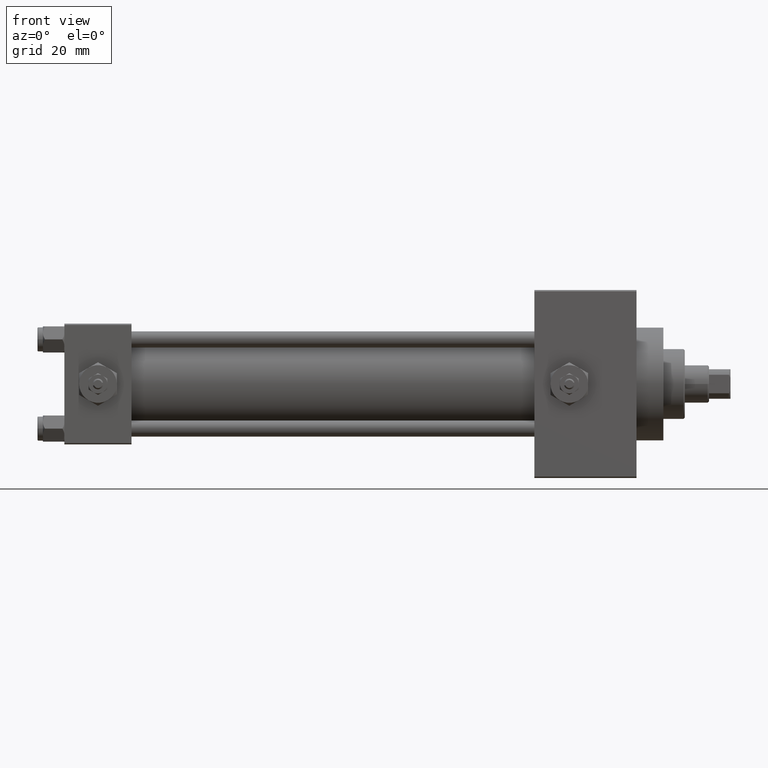
[diagram: clean part render]
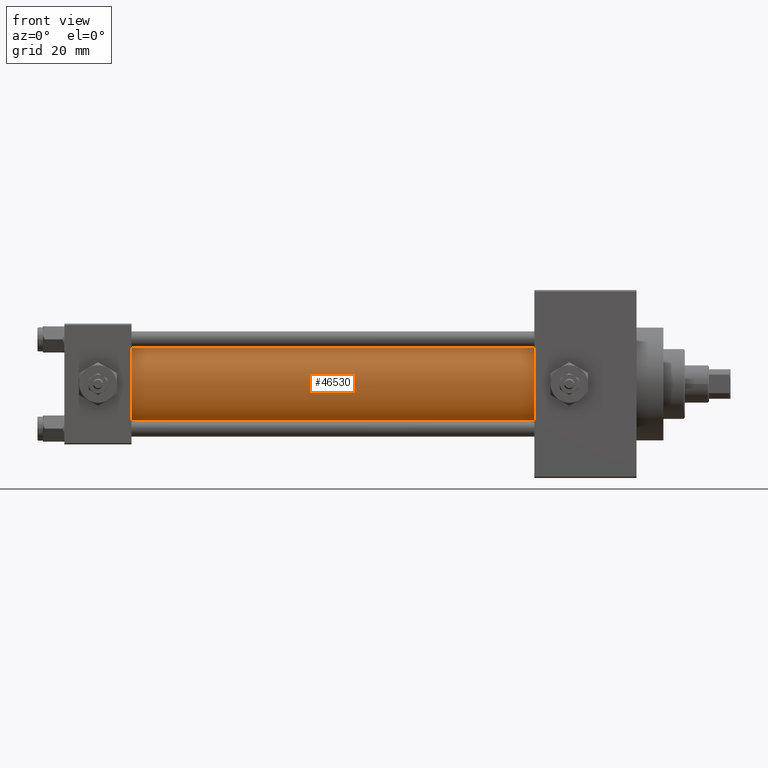
[diagram: same view with one face highlighted and labeled with its STEP entity id]
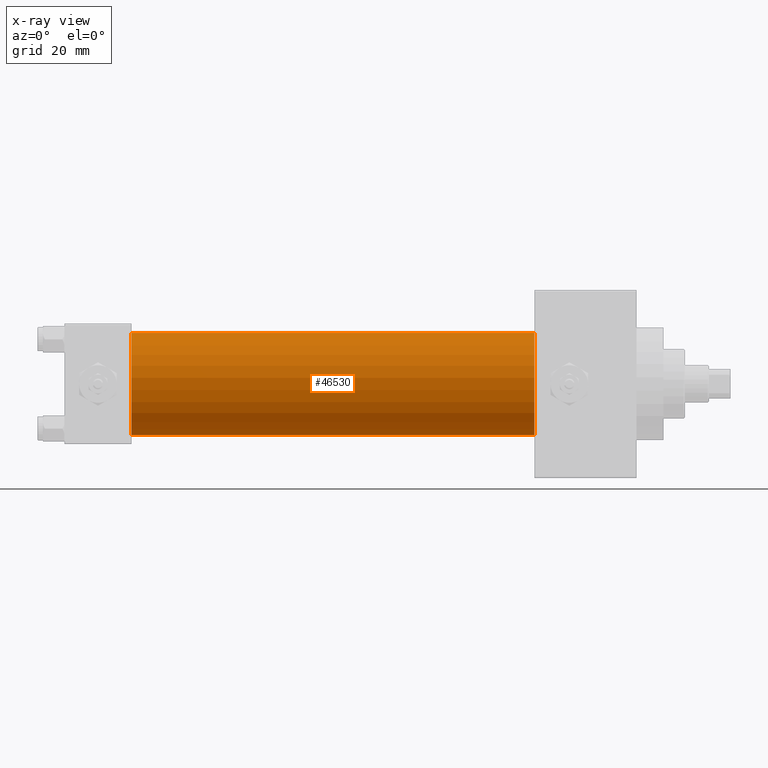
[diagram: x-ray of the same camera — body ghosted, the highlighted face saturated]
A machine part, front view. The second image highlights one B-rep face of the part: STEP entity #46530.
The next image is the same camera in x-ray: the body ghosted, the highlighted face saturated — about 0% of this face is hidden behind the body in this view.
In plain terms, the highlighted cylindrical surface (partial cylindrical patch) has radius 19 mm, axis along (-1, -0, -0).
Its self-contained STEP definition (entity closure, byte-faithful):
#3899 = EDGE_LOOP ( 'NONE', ( #4604, #28913, #47193, #43938 ) ) ;
#4604 = ORIENTED_EDGE ( 'NONE', *, *, #38724, .F. ) ;
#5856 = CIRCLE ( 'NONE', #14562, 19.00000000000000000 ) ;
#7008 = DIRECTION ( 'NONE',  ( 0.000000000000000000, 0.000000000000000000, -1.000000000000000000 ) ) ;
#7709 = CARTESIAN_POINT ( 'NONE',  ( 175.0000000000000000, -2.752562955852396712E-16, -19.00000000000000000 ) ) ;
#9627 = AXIS2_PLACEMENT_3D ( 'NONE', #27647, #42787, #35349 ) ;
#9735 = VERTEX_POINT ( 'NONE', #29379 ) ;
#12528 = DIRECTION ( 'NONE',  ( -1.000000000000000000, -0.000000000000000000, -0.000000000000000000 ) ) ;
#14562 = AXIS2_PLACEMENT_3D ( 'NONE', #41006, #37276, #7008 ) ;
#14953 = EDGE_CURVE ( 'NONE', #26841, #22682, #19977, .T. ) ;
#15272 = CARTESIAN_POINT ( 'NONE',  ( 24.99999999999999289, -2.602085213965210642E-15, 19.00000000000000000 ) ) ;
#15354 = CARTESIAN_POINT ( 'NONE',  ( 175.0000000000000000, -2.602085213965210642E-15, 19.00000000000000000 ) ) ;
#18629 = CARTESIAN_POINT ( 'NONE',  ( 175.0000000000000000, -2.752562955852396712E-16, -19.00000000000000000 ) ) ;
#19118 = VERTEX_POINT ( 'NONE', #18629 ) ;
#19623 = LINE ( 'NONE', #7709, #27307 ) ;
#19977 = LINE ( 'NONE', #27662, #39690 ) ;
#21722 = EDGE_CURVE ( 'NONE', #26841, #19118, #5856, .T. ) ;
#22682 = VERTEX_POINT ( 'NONE', #15272 ) ;
#22707 = DIRECTION ( 'NONE',  ( -1.000000000000000000, -0.000000000000000000, -0.000000000000000000 ) ) ;
#22833 = AXIS2_PLACEMENT_3D ( 'NONE', #30402, #22707, #40824 ) ;
#26841 = VERTEX_POINT ( 'NONE', #15354 ) ;
#27307 = VECTOR ( 'NONE', #27315, 1000.000000000000000 ) ;
#27315 = DIRECTION ( 'NONE',  ( -1.000000000000000000, -0.000000000000000000, -0.000000000000000000 ) ) ;
#27647 = CARTESIAN_POINT ( 'NONE',  ( 24.99999999999999289, -2.602085213965210642E-15, 0.000000000000000000 ) ) ;
#27662 = CARTESIAN_POINT ( 'NONE',  ( 175.0000000000000000, -2.602085213965210642E-15, 19.00000000000000000 ) ) ;
#28913 = ORIENTED_EDGE ( 'NONE', *, *, #21722, .F. ) ;
#29379 = CARTESIAN_POINT ( 'NONE',  ( 24.99999999999999289, -2.752562955852396712E-16, -19.00000000000000000 ) ) ;
#29666 = CYLINDRICAL_SURFACE ( 'NONE', #22833, 19.00000000000000000 ) ;
#30402 = CARTESIAN_POINT ( 'NONE',  ( 175.0000000000000000, -2.602085213965210642E-15, 0.000000000000000000 ) ) ;
#32261 = EDGE_CURVE ( 'NONE', #22682, #9735, #42117, .T. ) ;
#35349 = DIRECTION ( 'NONE',  ( 0.000000000000000000, 0.000000000000000000, 1.000000000000000000 ) ) ;
#37276 = DIRECTION ( 'NONE',  ( 1.000000000000000000, 0.000000000000000000, 0.000000000000000000 ) ) ;
#38724 = EDGE_CURVE ( 'NONE', #19118, #9735, #19623, .T. ) ;
#39690 = VECTOR ( 'NONE', #12528, 1000.000000000000000 ) ;
#40824 = DIRECTION ( 'NONE',  ( 0.000000000000000000, 0.000000000000000000, 1.000000000000000000 ) ) ;
#41006 = CARTESIAN_POINT ( 'NONE',  ( 175.0000000000000000, -2.602085213965210642E-15, 0.000000000000000000 ) ) ;
#42117 = CIRCLE ( 'NONE', #9627, 19.00000000000000000 ) ;
#42787 = DIRECTION ( 'NONE',  ( 1.000000000000000000, -0.000000000000000000, 0.000000000000000000 ) ) ;
#43938 = ORIENTED_EDGE ( 'NONE', *, *, #32261, .T. ) ;
#45065 = FACE_OUTER_BOUND ( 'NONE', #3899, .T. ) ;
#46530 = ADVANCED_FACE ( 'NONE', ( #45065 ), #29666, .T. ) ;
#47193 = ORIENTED_EDGE ( 'NONE', *, *, #14953, .T. ) ;